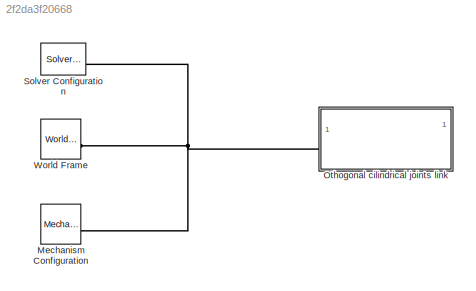
MODEL slx_2f2da3f20668
KIND model
CONFIG AbsTol = auto
CONFIG EnableMultiTasking = off
CONFIG FixedStep = auto
CONFIG MaxStep = auto
CONFIG MinStep = auto
CONFIG RelTol = 1e-3
CONFIG SampleTimeConstraint = Unconstrained
CONFIG SolverName = VariableStepAuto
CONFIG StartTime = 0.0
CONFIG StopTime = 10.0
BLOCK [Reference] Mechanism Configuration  REF=sm_lib/Utilities/Mechanism
Configuration
  SourceBlock = sm_lib/Utilities/Mechanism\nConfiguration
  SourceType = Mechanism\nConfiguration
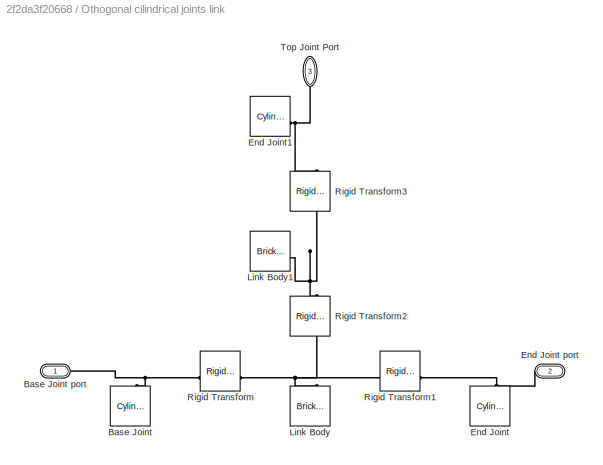
BLOCK [SubSystem] Othogonal cilindrical joints link
  VariantControl = Choice
BLOCK [Reference] Othogonal cilindrical joints link/Base Joint  REF=sm_lib/Body Elements/Cylindrical Solid
  NameLocation = right
  SourceBlock = sm_lib/Body Elements/Cylindrical Solid
  SourceType = Cylindrical Solid
BLOCK [PMIOPort] Othogonal cilindrical joints link/Base Joint port
  Side = Left
BLOCK [Reference] Othogonal cilindrical joints link/End Joint  REF=sm_lib/Body Elements/Cylindrical Solid
  NameLocation = right
  SourceBlock = sm_lib/Body Elements/Cylindrical Solid
  SourceType = Cylindrical Solid
BLOCK [PMIOPort] Othogonal cilindrical joints link/End Joint port
  NameLocation = top
  Port = 2
  Side = Right
BLOCK [Reference] Othogonal cilindrical joints link/End Joint1  REF=sm_lib/Body Elements/Cylindrical Solid
  SourceBlock = sm_lib/Body Elements/Cylindrical Solid
  SourceType = Cylindrical Solid
BLOCK [Reference] Othogonal cilindrical joints link/Link Body  REF=sm_lib/Body Elements/Brick Solid
  NameLocation = right
  SourceBlock = sm_lib/Body Elements/Brick Solid
  SourceType = Brick Solid
BLOCK [Reference] Othogonal cilindrical joints link/Link Body1  REF=sm_lib/Body Elements/Brick Solid
  SourceBlock = sm_lib/Body Elements/Brick Solid
  SourceType = Brick Solid
BLOCK [Reference] Othogonal cilindrical joints link/Rigid Transform  REF=sm_lib/Frames and
Transforms/Rigid
Transform
  SourceBlock = sm_lib/Frames and\nTransforms/Rigid\nTransform
  SourceType = Rigid\nTransform
BLOCK [Reference] Othogonal cilindrical joints link/Rigid Transform1  REF=sm_lib/Frames and
Transforms/Rigid
Transform
  SourceBlock = sm_lib/Frames and\nTransforms/Rigid\nTransform
  SourceType = Rigid\nTransform
BLOCK [Reference] Othogonal cilindrical joints link/Rigid Transform2  REF=sm_lib/Frames and
Transforms/Rigid
Transform
  NameLocation = left
  SourceBlock = sm_lib/Frames and\nTransforms/Rigid\nTransform
  SourceType = Rigid\nTransform
BLOCK [Reference] Othogonal cilindrical joints link/Rigid Transform3  REF=sm_lib/Frames and
Transforms/Rigid
Transform
  NameLocation = left
  SourceBlock = sm_lib/Frames and\nTransforms/Rigid\nTransform
  SourceType = Rigid\nTransform
BLOCK [PMIOPort] Othogonal cilindrical joints link/Top Joint Port
  NameLocation = left
  Port = 3
  Side = Right
BLOCK [Reference] Solver Configuration  REF=nesl_utility/Solver
Configuration
  SourceBlock = nesl_utility/Solver\nConfiguration
  SourceType = Solver\nConfiguration
BLOCK [Reference] World Frame  REF=sm_lib/Frames and
Transforms/World Frame
  SourceBlock = sm_lib/Frames and\nTransforms/World Frame
  SourceType = World Frame
PNET net1: Mechanism Configuration:RConn1 -- Othogonal cilindrical joints link:LConn1 -- Solver Configuration:RConn1 -- World Frame:RConn1
PNET net2: Othogonal cilindrical joints link/Base Joint port:RConn1 -- Othogonal cilindrical joints link/Base Joint:RConn1 -- Othogonal cilindrical joints link/Rigid Transform:LConn1
PNET net3: Othogonal cilindrical joints link/End Joint port:RConn1 -- Othogonal cilindrical joints link/End Joint:RConn1 -- Othogonal cilindrical joints link/Rigid Transform1:RConn1
PNET net4: Othogonal cilindrical joints link/End Joint1:RConn1 -- Othogonal cilindrical joints link/Rigid Transform3:LConn1 -- Othogonal cilindrical joints link/Top Joint Port:RConn1
PNET net5: Othogonal cilindrical joints link/Link Body1:RConn1 -- Othogonal cilindrical joints link/Rigid Transform2:LConn1 -- Othogonal cilindrical joints link/Rigid Transform3:RConn1
PNET net6: Othogonal cilindrical joints link/Link Body:RConn1 -- Othogonal cilindrical joints link/Rigid Transform1:LConn1 -- Othogonal cilindrical joints link/Rigid Transform2:RConn1 -- Othogonal cilindrical joints link/Rigid Transform:RConn1
note: PNET lines group multi-terminal physical nets as a canonical sorted terminal list (undirected conserving connections); 2-terminal nets keep the pairwise PLINE form
